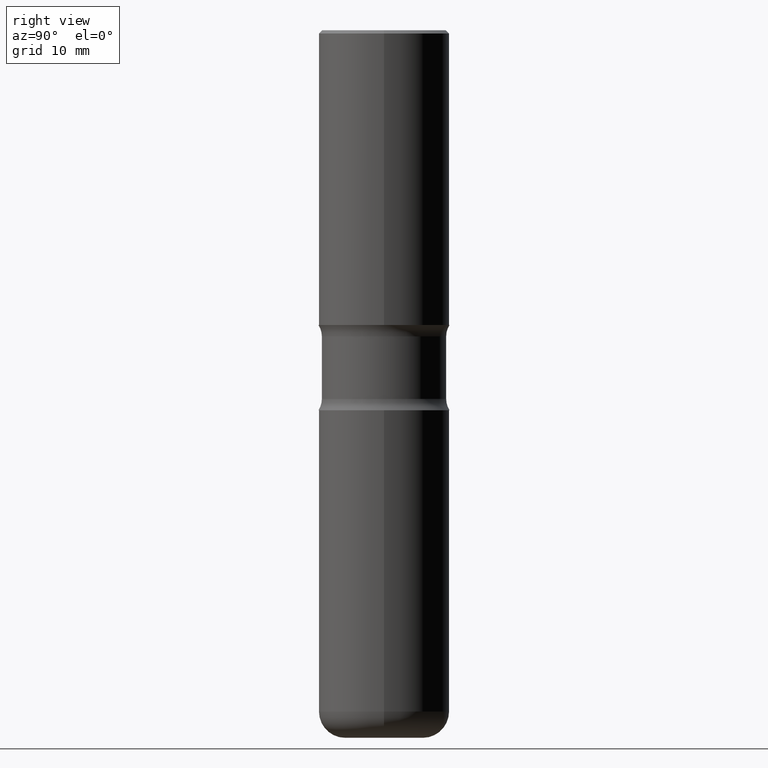
[diagram: clean part render]
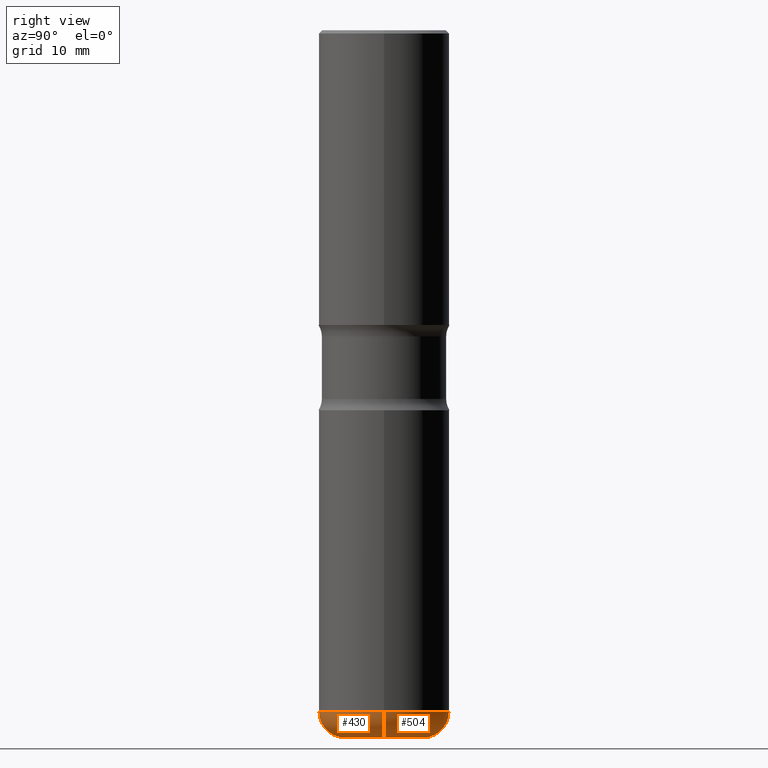
[diagram: same view with one multi-face feature highlighted, each face labeled with its STEP entity id]
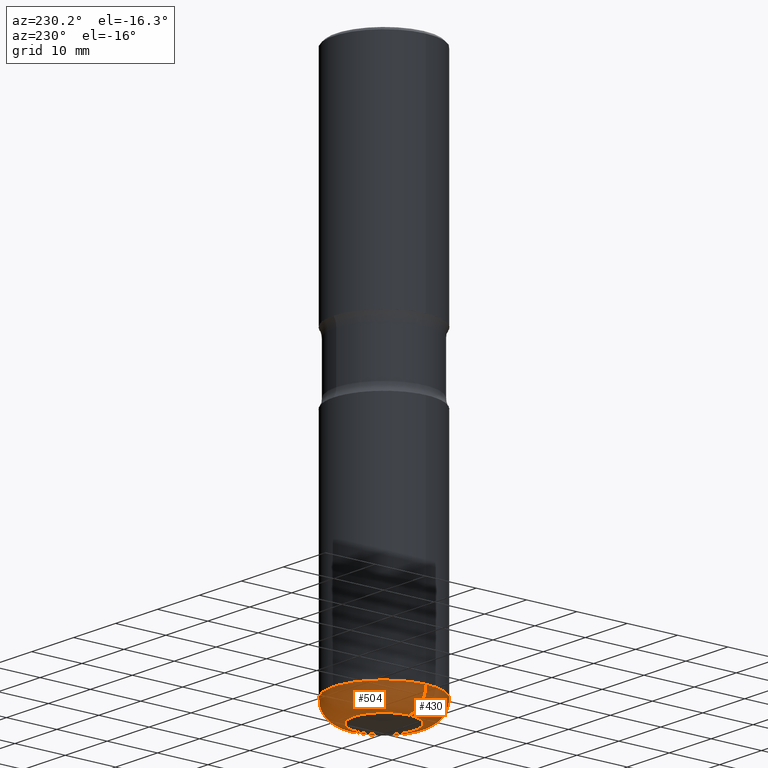
[diagram: same view with one multi-face feature highlighted, each face labeled with its STEP entity id]
A machine part, right view. The highlighted faces form ONE feature: a constant-radius fillet chain: 2 tangent blend faces with common blend radius 4.0132 mm. The faces share edges in the B-rep.
A second angle (auxiliary view) of the same feature is appended — it is thin or edge-on in the first view.
Their STEP definitions:
[1] entity #430 (Torus):
#5 = CIRCLE ( 'NONE', #458, 0.2357000000000006312 ) ;
#11 = ORIENTED_EDGE ( 'NONE', *, *, #40, .F. ) ;
#26 = DIRECTION ( 'NONE',  ( 1.000000000000000000, -6.982962677686269077E-15, 4.883557194083114022E-29 ) ) ;
#40 = EDGE_CURVE ( 'NONE', #238, #55, #117, .T. ) ;
#45 = AXIS2_PLACEMENT_3D ( 'NONE', #502, #199, #493 ) ;
#52 = EDGE_LOOP ( 'NONE', ( #11, #429, #273, #405 ) ) ;
#55 = VERTEX_POINT ( 'NONE', #162 ) ;
#59 = EDGE_CURVE ( 'NONE', #55, #101, #374, .T. ) ;
#62 = DIRECTION ( 'NONE',  ( -6.982962677686266711E-15, -1.000000000000000000, 3.491481338843145583E-15 ) ) ;
#73 = DIRECTION ( 'NONE',  ( -2.445468806185136597E-29, 3.491481338843145583E-15, 1.000000000000000000 ) ) ;
#101 = VERTEX_POINT ( 'NONE', #208 ) ;
#117 = CIRCLE ( 'NONE', #45, 0.1579999999999998905 ) ;
#119 = CARTESIAN_POINT ( 'NONE',  ( 1.001174929252194934E-28, -1.429412460122383920E-14, -4.094000000000000306 ) ) ;
#131 = CARTESIAN_POINT ( 'NONE',  ( -0.2357000000000006312, -1.233387363755540793E-14, -4.251999999999999780 ) ) ;
#135 = AXIS2_PLACEMENT_3D ( 'NONE', #119, #542, #286 ) ;
#142 = CARTESIAN_POINT ( 'NONE',  ( 0.2357000000000006312, -1.649166295589171151E-14, -4.251999999999999780 ) ) ;
#162 = CARTESIAN_POINT ( 'NONE',  ( -0.3937000000000005495, -1.149671785053631889E-14, -4.094000000000000306 ) ) ;
#199 = DIRECTION ( 'NONE',  ( 7.105427357601001859E-15, 1.000000000000000000, -3.491481338843145583E-15 ) ) ;
#208 = CARTESIAN_POINT ( 'NONE',  ( 0.3937000000000005495, -1.704331700742892557E-14, -4.094000000000000306 ) ) ;
#227 = DIRECTION ( 'NONE',  ( 1.000000000000000000, -6.982962677686263555E-15, 0.000000000000000000 ) ) ;
#238 = VERTEX_POINT ( 'NONE', #131 ) ;
#273 = ORIENTED_EDGE ( 'NONE', *, *, #384, .T. ) ;
#279 = AXIS2_PLACEMENT_3D ( 'NONE', #366, #73, #26 ) ;
#286 = DIRECTION ( 'NONE',  ( 1.000000000000000000, -6.982962677686266711E-15, 0.000000000000000000 ) ) ;
#311 = EDGE_CURVE ( 'NONE', #238, #312, #5, .T. ) ;
#312 = VERTEX_POINT ( 'NONE', #142 ) ;
#322 = CIRCLE ( 'NONE', #385, 0.1579999999999998905 ) ;
#366 = CARTESIAN_POINT ( 'NONE',  ( 1.001174929252194934E-28, -1.429412460122383920E-14, -4.094000000000000306 ) ) ;
#374 = CIRCLE ( 'NONE', #135, 0.3937000000000006605 ) ;
#384 = EDGE_CURVE ( 'NONE', #312, #101, #322, .T. ) ;
#385 = AXIS2_PLACEMENT_3D ( 'NONE', #477, #62, #227 ) ;
#396 = DIRECTION ( 'NONE',  ( -2.445468806185136597E-29, 3.491481338843145583E-15, 1.000000000000000000 ) ) ;
#405 = ORIENTED_EDGE ( 'NONE', *, *, #59, .F. ) ;
#425 = TOROIDAL_SURFACE ( 'NONE', #279, 0.2357000000000006035, 0.1579999999999999183 ) ;
#429 = ORIENTED_EDGE ( 'NONE', *, *, #311, .T. ) ;
#430 = ADVANCED_FACE ( 'NONE', ( #489 ), #425, .T. ) ;
#437 = CARTESIAN_POINT ( 'NONE',  ( 1.039813336389919950E-28, -1.484577865276105326E-14, -4.251999999999999780 ) ) ;
#458 = AXIS2_PLACEMENT_3D ( 'NONE', #437, #396, #516 ) ;
#477 = CARTESIAN_POINT ( 'NONE',  ( 0.2357000000000006035, -1.594000890435449430E-14, -4.094000000000000306 ) ) ;
#489 = FACE_OUTER_BOUND ( 'NONE', #52, .T. ) ;
#493 = DIRECTION ( 'NONE',  ( -1.000000000000000000, 7.105427357601009747E-15, 0.000000000000000000 ) ) ;
#502 = CARTESIAN_POINT ( 'NONE',  ( -0.2357000000000006035, -1.261937537303727818E-14, -4.094000000000000306 ) ) ;
#516 = DIRECTION ( 'NONE',  ( 1.000000000000000000, -6.982962677686264344E-15, 0.000000000000000000 ) ) ;
#542 = DIRECTION ( 'NONE',  ( -2.445468806185136597E-29, 3.491481338843145583E-15, 1.000000000000000000 ) ) ;
[2] entity #504 (Torus):
#16 = AXIS2_PLACEMENT_3D ( 'NONE', #283, #316, #116 ) ;
#36 = AXIS2_PLACEMENT_3D ( 'NONE', #334, #251, #377 ) ;
#37 = CIRCLE ( 'NONE', #333, 0.2357000000000006312 ) ;
#40 = EDGE_CURVE ( 'NONE', #238, #55, #117, .T. ) ;
#45 = AXIS2_PLACEMENT_3D ( 'NONE', #502, #199, #493 ) ;
#55 = VERTEX_POINT ( 'NONE', #162 ) ;
#62 = DIRECTION ( 'NONE',  ( -6.982962677686266711E-15, -1.000000000000000000, 3.491481338843145583E-15 ) ) ;
#101 = VERTEX_POINT ( 'NONE', #208 ) ;
#113 = ORIENTED_EDGE ( 'NONE', *, *, #150, .F. ) ;
#116 = DIRECTION ( 'NONE',  ( 1.000000000000000000, -6.982962677686269077E-15, 4.883557194083114022E-29 ) ) ;
#117 = CIRCLE ( 'NONE', #45, 0.1579999999999998905 ) ;
#131 = CARTESIAN_POINT ( 'NONE',  ( -0.2357000000000006312, -1.233387363755540793E-14, -4.251999999999999780 ) ) ;
#142 = CARTESIAN_POINT ( 'NONE',  ( 0.2357000000000006312, -1.649166295589171151E-14, -4.251999999999999780 ) ) ;
#150 = EDGE_CURVE ( 'NONE', #101, #55, #472, .T. ) ;
#161 = DIRECTION ( 'NONE',  ( 1.000000000000000000, -6.982962677686264344E-15, 0.000000000000000000 ) ) ;
#162 = CARTESIAN_POINT ( 'NONE',  ( -0.3937000000000005495, -1.149671785053631889E-14, -4.094000000000000306 ) ) ;
#182 = ORIENTED_EDGE ( 'NONE', *, *, #40, .T. ) ;
#192 = EDGE_LOOP ( 'NONE', ( #381, #182, #113, #308 ) ) ;
#199 = DIRECTION ( 'NONE',  ( 7.105427357601001859E-15, 1.000000000000000000, -3.491481338843145583E-15 ) ) ;
#208 = CARTESIAN_POINT ( 'NONE',  ( 0.3937000000000005495, -1.704331700742892557E-14, -4.094000000000000306 ) ) ;
#227 = DIRECTION ( 'NONE',  ( 1.000000000000000000, -6.982962677686263555E-15, 0.000000000000000000 ) ) ;
#238 = VERTEX_POINT ( 'NONE', #131 ) ;
#251 = DIRECTION ( 'NONE',  ( -2.445468806185136597E-29, 3.491481338843145583E-15, 1.000000000000000000 ) ) ;
#283 = CARTESIAN_POINT ( 'NONE',  ( 1.001174929252194934E-28, -1.429412460122383920E-14, -4.094000000000000306 ) ) ;
#285 = FACE_OUTER_BOUND ( 'NONE', #192, .T. ) ;
#308 = ORIENTED_EDGE ( 'NONE', *, *, #384, .F. ) ;
#312 = VERTEX_POINT ( 'NONE', #142 ) ;
#316 = DIRECTION ( 'NONE',  ( -2.445468806185136597E-29, 3.491481338843145583E-15, 1.000000000000000000 ) ) ;
#322 = CIRCLE ( 'NONE', #385, 0.1579999999999998905 ) ;
#333 = AXIS2_PLACEMENT_3D ( 'NONE', #501, #453, #161 ) ;
#334 = CARTESIAN_POINT ( 'NONE',  ( 1.001174929252194934E-28, -1.429412460122383920E-14, -4.094000000000000306 ) ) ;
#377 = DIRECTION ( 'NONE',  ( 1.000000000000000000, -6.982962677686266711E-15, 0.000000000000000000 ) ) ;
#381 = ORIENTED_EDGE ( 'NONE', *, *, #537, .T. ) ;
#384 = EDGE_CURVE ( 'NONE', #312, #101, #322, .T. ) ;
#385 = AXIS2_PLACEMENT_3D ( 'NONE', #477, #62, #227 ) ;
#397 = TOROIDAL_SURFACE ( 'NONE', #16, 0.2357000000000006035, 0.1579999999999999183 ) ;
#453 = DIRECTION ( 'NONE',  ( -2.445468806185136597E-29, 3.491481338843145583E-15, 1.000000000000000000 ) ) ;
#472 = CIRCLE ( 'NONE', #36, 0.3937000000000006605 ) ;
#477 = CARTESIAN_POINT ( 'NONE',  ( 0.2357000000000006035, -1.594000890435449430E-14, -4.094000000000000306 ) ) ;
#493 = DIRECTION ( 'NONE',  ( -1.000000000000000000, 7.105427357601009747E-15, 0.000000000000000000 ) ) ;
#501 = CARTESIAN_POINT ( 'NONE',  ( 1.039813336389919950E-28, -1.484577865276105326E-14, -4.251999999999999780 ) ) ;
#502 = CARTESIAN_POINT ( 'NONE',  ( -0.2357000000000006035, -1.261937537303727818E-14, -4.094000000000000306 ) ) ;
#504 = ADVANCED_FACE ( 'NONE', ( #285 ), #397, .T. ) ;
#537 = EDGE_CURVE ( 'NONE', #312, #238, #37, .T. ) ;